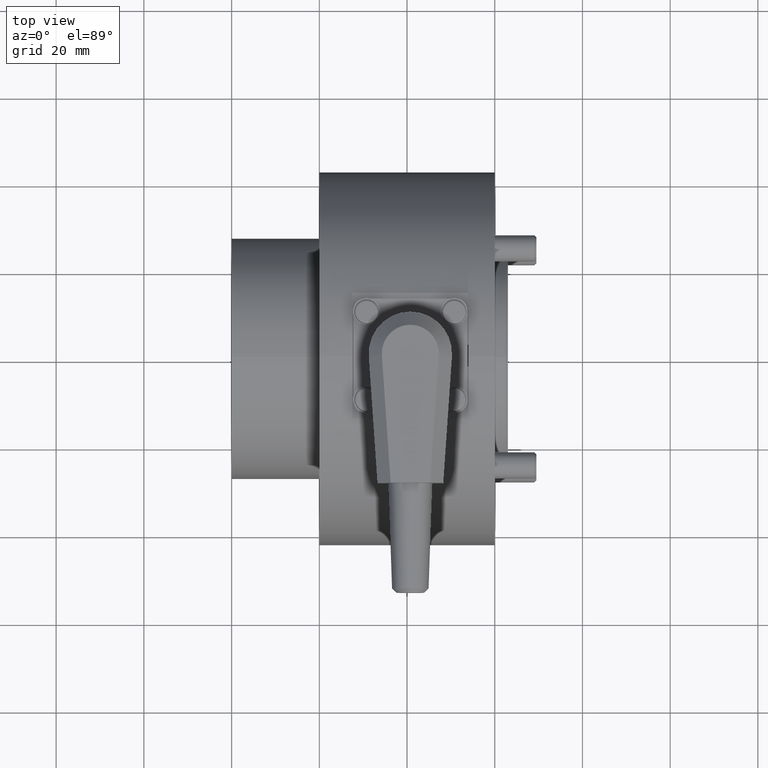
[diagram: clean part render]
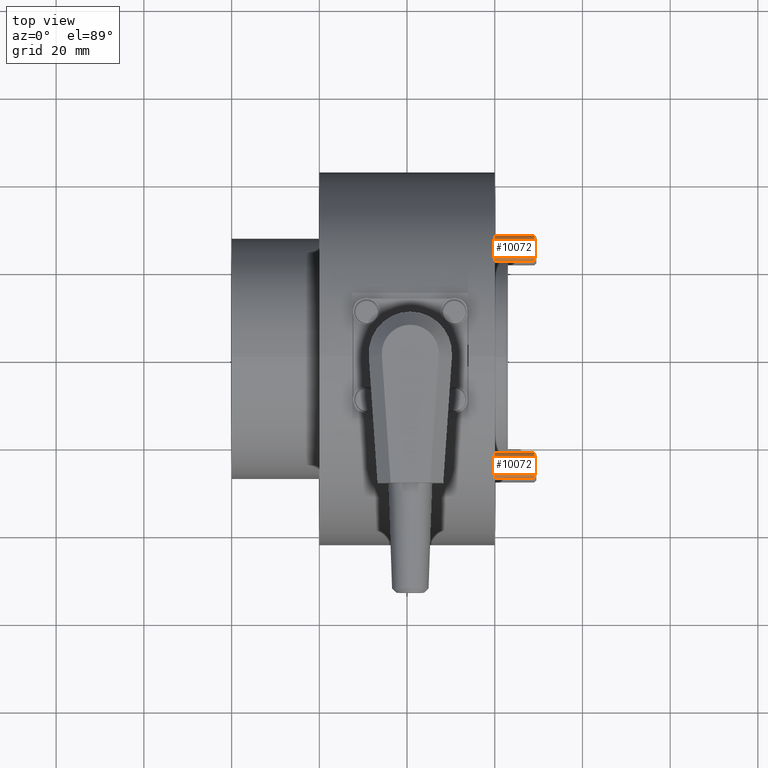
[diagram: same view with one multi-face feature highlighted, each face labeled with its STEP entity id]
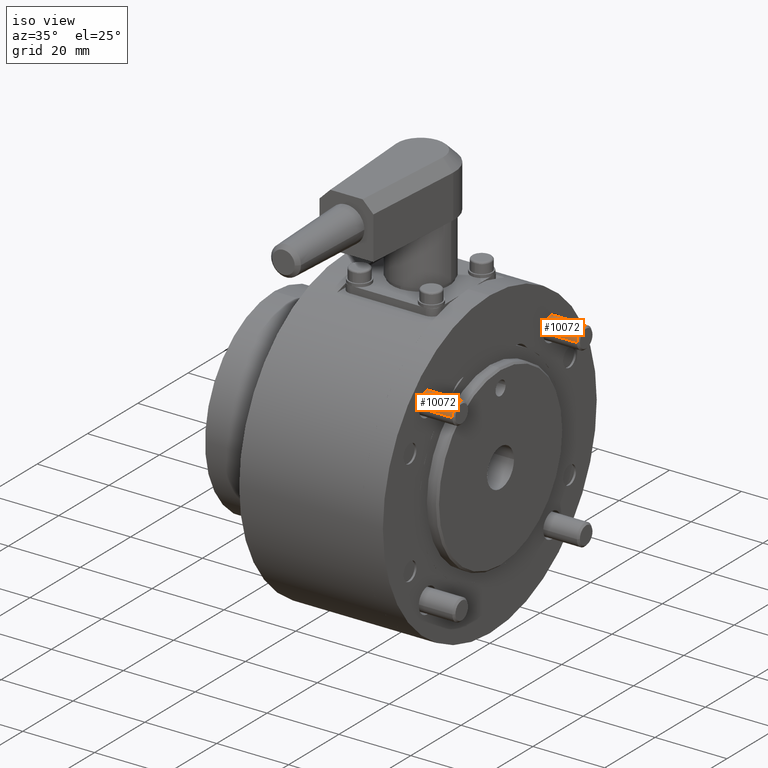
[diagram: same view with one multi-face feature highlighted, each face labeled with its STEP entity id]
A machine part, top view. The highlighted faces form ONE feature: a constant-radius fillet chain: 2 tangent blend faces with common blend radius 3 mm. The faces share edges in the B-rep.
A second angle (iso view) of the same feature is appended — it is thin or edge-on in the first view.
Their STEP definitions:
[1] entity #10072 (Cylinder):
#10004=CARTESIAN_POINT('',(-16.500000000000000,3.0,0.0));
#10005=VERTEX_POINT('',#10004);
#10014=CARTESIAN_POINT('',(-16.500000000000000,-3.000000000000000,-3.673819E-016));
#10015=VERTEX_POINT('',#10014);
#10016=CARTESIAN_POINT('',(-16.500000000000000,-9.237576E-016,0.0));
#10017=DIRECTION('',(1.0,0.0,0.0));
#10018=DIRECTION('',(0.0,1.0,0.0));
#10019=AXIS2_PLACEMENT_3D('',#10016,#10017,#10018);
#10020=CIRCLE('',#10019,3.000000000000001);
#10021=EDGE_CURVE('',#10015,#10005,#10020,.T.);
#10041=CARTESIAN_POINT('',(3.250000000000000,1.494840E-015,0.0));
#10042=DIRECTION('',(1.0,1.224606E-016,0.0));
#10043=DIRECTION('',(0.0,1.0,0.0));
#10044=AXIS2_PLACEMENT_3D('',#10041,#10042,#10043);
#10045=CYLINDRICAL_SURFACE('',#10044,2.999999999999999);
#10046=CARTESIAN_POINT('',(23.0,3.0,0.0));
#10047=VERTEX_POINT('',#10046);
#10048=CARTESIAN_POINT('',(23.0,3.0,0.0));
#10049=DIRECTION('',(-1.0,0.0,0.0));
#10050=VECTOR('',#10049,39.500000000000000);
#10051=LINE('',#10048,#10050);
#10052=EDGE_CURVE('',#10047,#10005,#10051,.T.);
#10053=ORIENTED_EDGE('',*,*,#10052,.F.);
#10054=CARTESIAN_POINT('',(22.999999999999996,-2.999999999999995,-3.673819E-016));
#10055=VERTEX_POINT('',#10054);
#10056=CARTESIAN_POINT('',(22.999999999999996,3.913437E-015,0.0));
#10057=DIRECTION('',(1.0,0.0,0.0));
#10058=DIRECTION('',(0.0,1.0,0.0));
#10059=AXIS2_PLACEMENT_3D('',#10056,#10057,#10058);
#10060=CIRCLE('',#10059,2.999999999999996);
#10061=EDGE_CURVE('',#10055,#10047,#10060,.T.);
#10062=ORIENTED_EDGE('',*,*,#10061,.F.);
#10063=CARTESIAN_POINT('',(22.999999999999996,-2.999999999999995,-3.673819E-016));
#10064=DIRECTION('',(-1.0,0.0,0.0));
#10065=VECTOR('',#10064,39.500000000000000);
#10066=LINE('',#10063,#10065);
#10067=EDGE_CURVE('',#10055,#10015,#10066,.T.);
#10068=ORIENTED_EDGE('',*,*,#10067,.T.);
#10069=ORIENTED_EDGE('',*,*,#10021,.T.);
#10070=EDGE_LOOP('',(#10053,#10062,#10068,#10069));
#10071=FACE_OUTER_BOUND('',#10070,.T.);
#10072=ADVANCED_FACE('',(#10071),#10045,.T.);
[2] entity #10072 (Cylinder):
#10004=CARTESIAN_POINT('',(-16.500000000000000,3.0,0.0));
#10005=VERTEX_POINT('',#10004);
#10014=CARTESIAN_POINT('',(-16.500000000000000,-3.000000000000000,-3.673819E-016));
#10015=VERTEX_POINT('',#10014);
#10016=CARTESIAN_POINT('',(-16.500000000000000,-9.237576E-016,0.0));
#10017=DIRECTION('',(1.0,0.0,0.0));
#10018=DIRECTION('',(0.0,1.0,0.0));
#10019=AXIS2_PLACEMENT_3D('',#10016,#10017,#10018);
#10020=CIRCLE('',#10019,3.000000000000001);
#10021=EDGE_CURVE('',#10015,#10005,#10020,.T.);
#10041=CARTESIAN_POINT('',(3.250000000000000,1.494840E-015,0.0));
#10042=DIRECTION('',(1.0,1.224606E-016,0.0));
#10043=DIRECTION('',(0.0,1.0,0.0));
#10044=AXIS2_PLACEMENT_3D('',#10041,#10042,#10043);
#10045=CYLINDRICAL_SURFACE('',#10044,2.999999999999999);
#10046=CARTESIAN_POINT('',(23.0,3.0,0.0));
#10047=VERTEX_POINT('',#10046);
#10048=CARTESIAN_POINT('',(23.0,3.0,0.0));
#10049=DIRECTION('',(-1.0,0.0,0.0));
#10050=VECTOR('',#10049,39.500000000000000);
#10051=LINE('',#10048,#10050);
#10052=EDGE_CURVE('',#10047,#10005,#10051,.T.);
#10053=ORIENTED_EDGE('',*,*,#10052,.F.);
#10054=CARTESIAN_POINT('',(22.999999999999996,-2.999999999999995,-3.673819E-016));
#10055=VERTEX_POINT('',#10054);
#10056=CARTESIAN_POINT('',(22.999999999999996,3.913437E-015,0.0));
#10057=DIRECTION('',(1.0,0.0,0.0));
#10058=DIRECTION('',(0.0,1.0,0.0));
#10059=AXIS2_PLACEMENT_3D('',#10056,#10057,#10058);
#10060=CIRCLE('',#10059,2.999999999999996);
#10061=EDGE_CURVE('',#10055,#10047,#10060,.T.);
#10062=ORIENTED_EDGE('',*,*,#10061,.F.);
#10063=CARTESIAN_POINT('',(22.999999999999996,-2.999999999999995,-3.673819E-016));
#10064=DIRECTION('',(-1.0,0.0,0.0));
#10065=VECTOR('',#10064,39.500000000000000);
#10066=LINE('',#10063,#10065);
#10067=EDGE_CURVE('',#10055,#10015,#10066,.T.);
#10068=ORIENTED_EDGE('',*,*,#10067,.T.);
#10069=ORIENTED_EDGE('',*,*,#10021,.T.);
#10070=EDGE_LOOP('',(#10053,#10062,#10068,#10069));
#10071=FACE_OUTER_BOUND('',#10070,.T.);
#10072=ADVANCED_FACE('',(#10071),#10045,.T.);